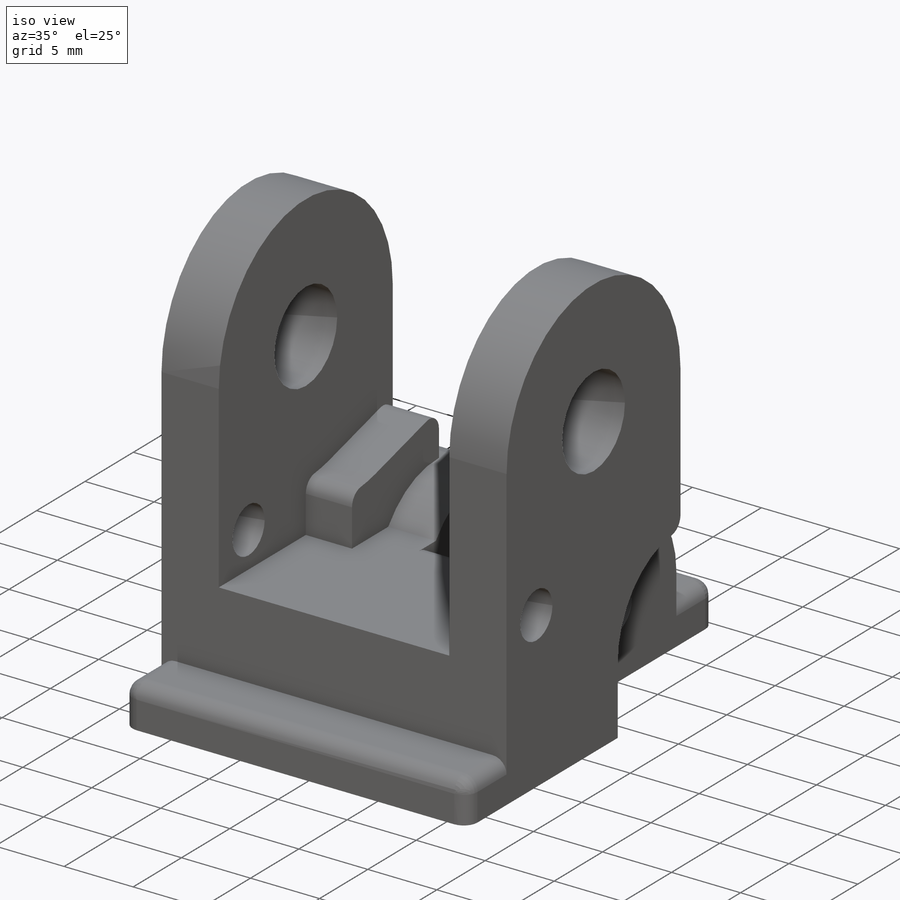
[diagram: iso view]
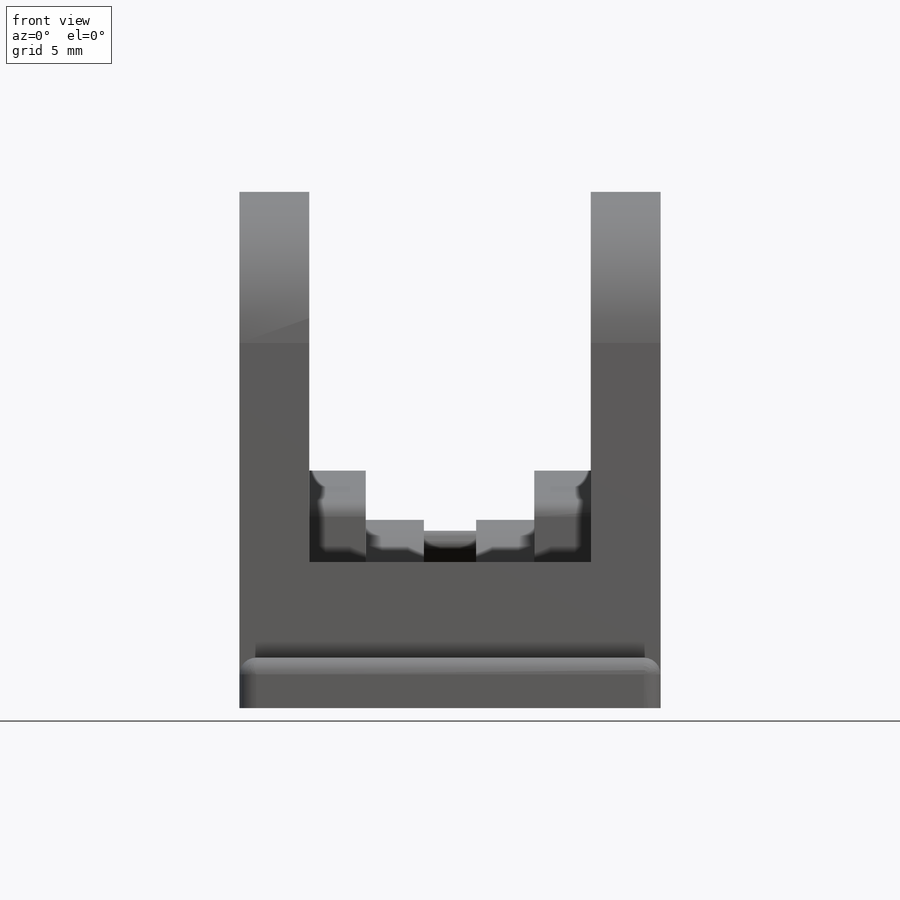
[diagram: front view]
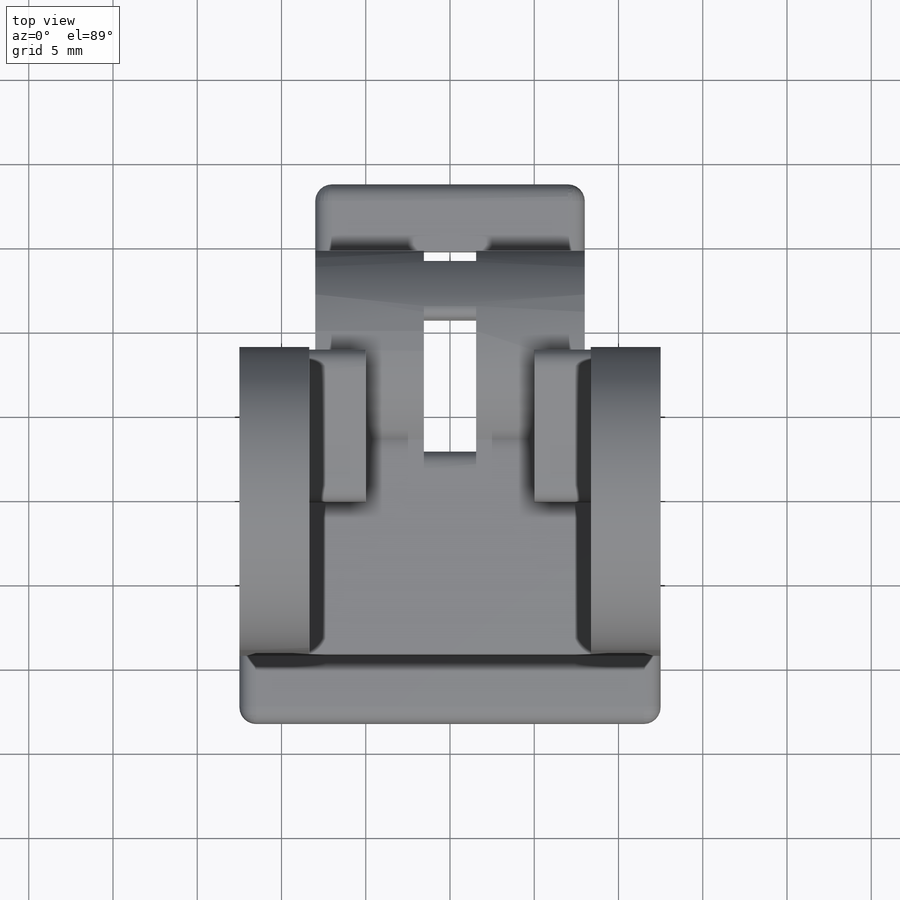
[diagram: top view]
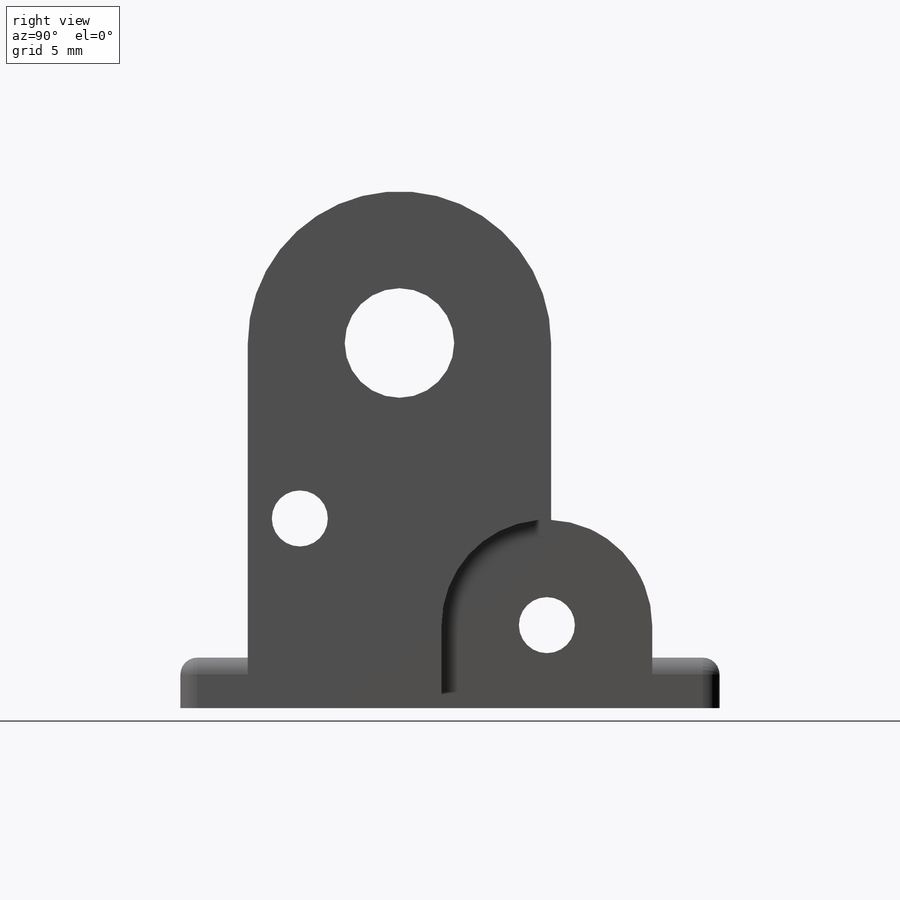
[diagram: right view]
SOLIDWORKS PART (.sldprt)
format: sldprt  version: not decoded by parser v0  size: 461,312 bytes
history: native  units: mm
features: sketch x7, cut_extrude x5, extrude x2, fillet x2, material x1, mirror x1 + 2 further entries (+22 scaffold rows collapsed; 6 parser-record rows omitted)
feature tree (48):
  scaffold x22  (default folders/planes/origin — collapsed)
  material  "ABS"
  "params_finger_t"
  parser-record x6  (decoder bookkeeping rows leaked as tree rows — omitted from the tree; the rows remain in map.json)
  "params_print"
  sketch  "Sketch1"  dims[c1.D1=6.35mm c1.D2=9.5mm c1.D4=~13.088889mm c1.D5=~12.675864mm c1.D6=18.0mm c1.D8=16.0mm c1.D10=3.175mm c1.D14=1.5875mm c1.D15=~2.075224mm c1.D3=~14.78575mm c2.D4=0.175mm c2.D5=1.5mm c2.D7=28.285mm c2.D9=~34.150631mm c3.D9=15.0deg c3.D11=3.0mm c3.D12=4.0mm c4.D9=~35.881821mm c5.D9=15.0deg c5.D13=1.5mm c5.D15=0.175mm c5.D16=1.5mm]
  extrude  "Main Body"  Depth=12.5mm
  sketch  "Sketch2"  dims[c1.D1=18.0mm c1.D2=18.0mm c2.D1=4.0mm]
  cut_extrude  "Finger Clearance"  Depth=8.35mm
  sketch  "Sketch3"  dims[c1.D1=~4.735688mm c2.D1=45.0deg c2.D2=~4.480617mm c3.D2=45.0deg]
  cut_extrude  "Pulley Clearance"  Depth=1.55mm
  sketch  "Sketch4"  dims[c1.D2=~20.133242mm c1.D1=~25.064309mm c2.D1=15.0deg c2.D2=0.35mm]
  extrude  "Proximal Offset"  Depth=3.35mm
  sketch  "Sketch6"  dims[D1=3.0mm]
  cut_extrude  "Side Clearance"  Depth=4.5mm
  sketch  "Sketch7"  dims[D1=1.0mm D2=1.5mm]
  cut_extrude  "Extension Spring Anchor"  [1 undecoded]
  mirror  "Mirror"
  fillet  "Contouring"  Radius=1mm
  fillet  "Pulley Cover Contouring"  Radius=0.5mm
  sketch  "Sketch8"  dims[D1=0.075mm]
  cut_extrude  "Print Clearance - Pin Inserts"  [1 undecoded]
decode coverage: 14 of 17 modeling features carry decoded parameters; 2 rows unclassified (native names shown)
note: ~ marks probable driven/reference dimensions
note: 2 parameter values undecoded
note: suppression state not decoded; provenance and decode notes live in map.json
